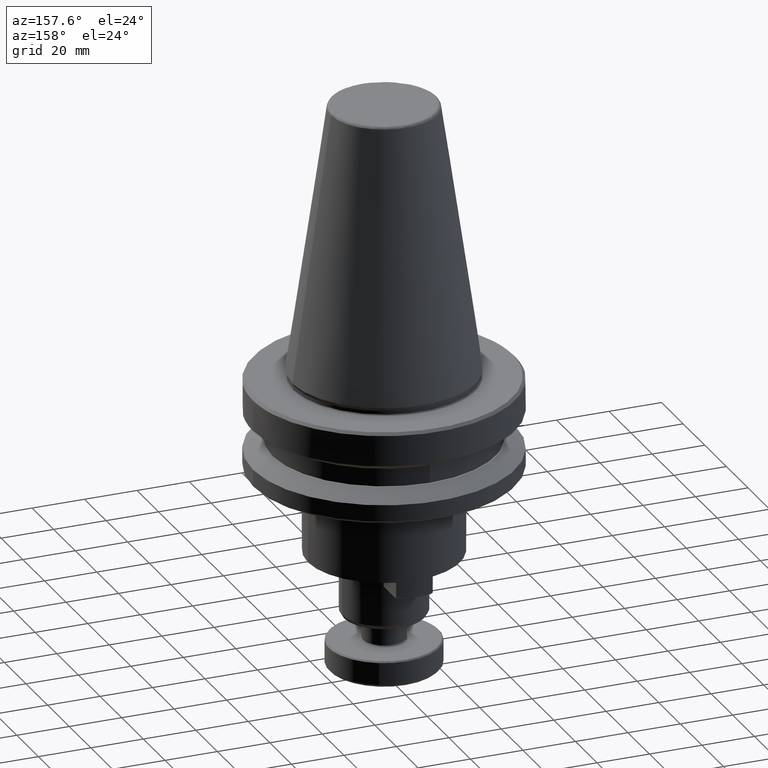
[diagram: clean part render]
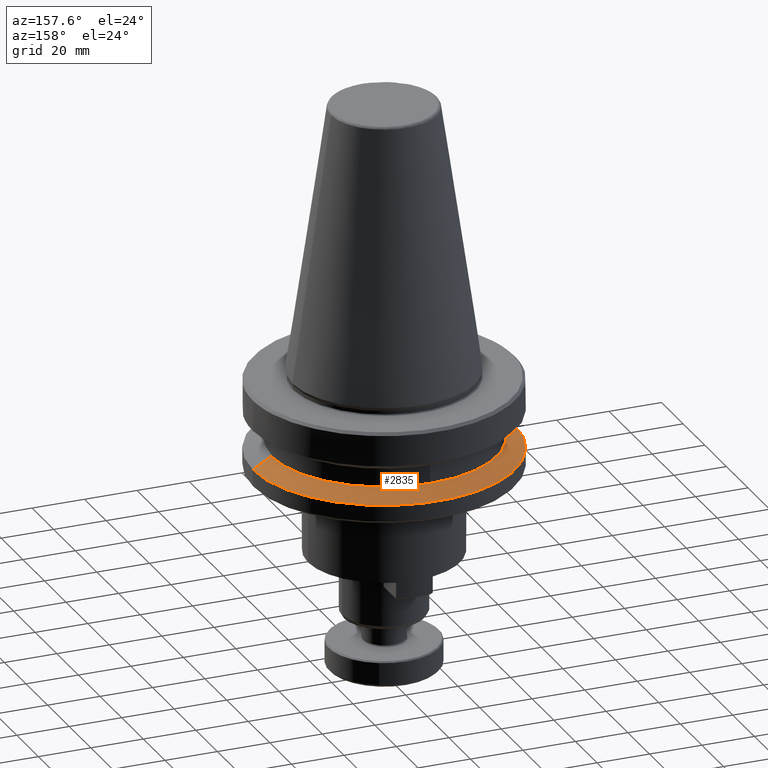
[diagram: same view with one face highlighted and labeled with its STEP entity id]
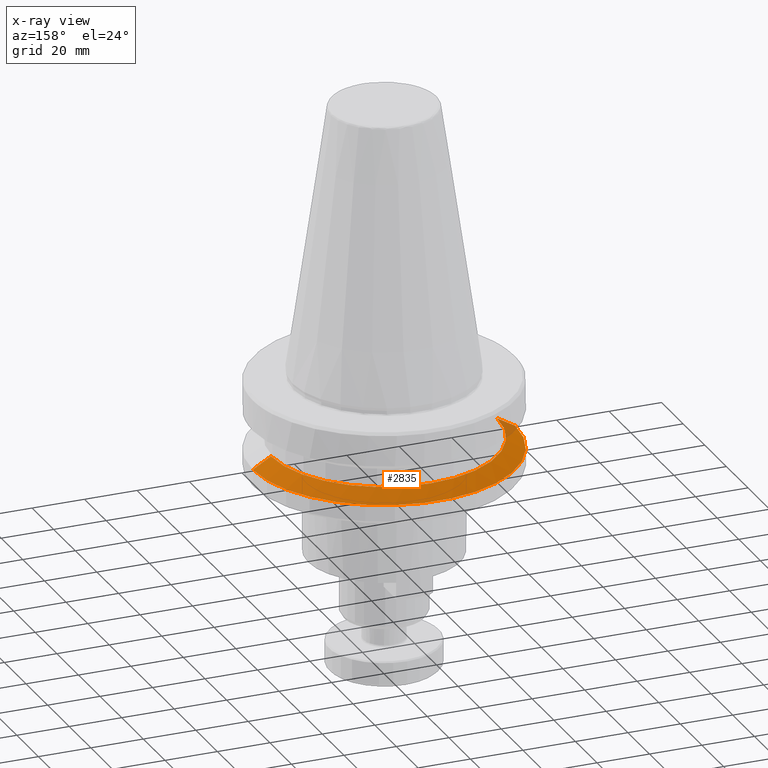
[diagram: x-ray of the same camera — body ghosted, the highlighted face saturated]
A machine part, auxiliary view. The second image highlights one B-rep face of the part: STEP entity #2835.
The next image is the same camera in x-ray: the body ghosted, the highlighted face saturated — about 3% of this face is hidden behind the body in this view.
In plain terms, the highlighted conical surface has half-angle 60 deg.
Its self-contained STEP definition (entity closure, byte-faithful):
#6 = CIRCLE ( 'NONE', #2283, 49.99999999999999300 ) ;
#27 = EDGE_CURVE ( 'NONE', #1665, #1702, #6, .T. ) ;
#118 = DIRECTION ( 'NONE',  ( 0.8660254284838163600, 1.060575268972920700E-016, -0.4999999572194205900 ) ) ;
#124 = CARTESIAN_POINT ( 'NONE',  ( 49.99999999999999300, 6.123233995736765300E-015, -30.69090246188667200 ) ) ;
#227 = VERTEX_POINT ( 'NONE', #1510 ) ;
#422 = DIRECTION ( 'NONE',  ( -0.8660254284838163600, 0.0000000000000000000, -0.4999999572194205900 ) ) ;
#558 = CARTESIAN_POINT ( 'NONE',  ( 0.0000000000000000000, 0.0000000000000000000, -26.69999999715254200 ) ) ;
#590 = LINE ( 'NONE', #124, #674 ) ;
#652 = CARTESIAN_POINT ( 'NONE',  ( 43.08755337444606700, 5.699968714023688800E-015, -26.69999999715254200 ) ) ;
#674 = VECTOR ( 'NONE', #118, 1000.000000000000100 ) ;
#783 = DIRECTION ( 'NONE',  ( 1.000000000000000000, 0.0000000000000000000, 0.0000000000000000000 ) ) ;
#962 = VERTEX_POINT ( 'NONE', #652 ) ;
#1147 = EDGE_CURVE ( 'NONE', #962, #1665, #590, .T. ) ;
#1150 = ORIENTED_EDGE ( 'NONE', *, *, #2772, .F. ) ;
#1235 = VECTOR ( 'NONE', #422, 1000.000000000000100 ) ;
#1259 = LINE ( 'NONE', #1726, #1235 ) ;
#1294 = EDGE_LOOP ( 'NONE', ( #1150, #2558, #1642, #1307 ) ) ;
#1307 = ORIENTED_EDGE ( 'NONE', *, *, #1773, .F. ) ;
#1308 = DIRECTION ( 'NONE',  ( 1.000000000000000000, 0.0000000000000000000, 0.0000000000000000000 ) ) ;
#1491 = AXIS2_PLACEMENT_3D ( 'NONE', #1746, #2075, #2282 ) ;
#1510 = CARTESIAN_POINT ( 'NONE',  ( -43.08755337444606700, 0.0000000000000000000, -26.69999999715254200 ) ) ;
#1567 = CARTESIAN_POINT ( 'NONE',  ( 49.99999999999999300, 6.123233995736765300E-015, -30.69090246188667200 ) ) ;
#1642 = ORIENTED_EDGE ( 'NONE', *, *, #27, .T. ) ;
#1665 = VERTEX_POINT ( 'NONE', #1567 ) ;
#1702 = VERTEX_POINT ( 'NONE', #1875 ) ;
#1726 = CARTESIAN_POINT ( 'NONE',  ( -49.99999999999999300, 0.0000000000000000000, -30.69090246188667200 ) ) ;
#1746 = CARTESIAN_POINT ( 'NONE',  ( 0.0000000000000000000, 0.0000000000000000000, -30.69090246188667200 ) ) ;
#1773 = EDGE_CURVE ( 'NONE', #227, #1702, #1259, .T. ) ;
#1875 = CARTESIAN_POINT ( 'NONE',  ( -49.99999999999999300, 0.0000000000000000000, -30.69090246188667200 ) ) ;
#1918 = CARTESIAN_POINT ( 'NONE',  ( 0.0000000000000000000, 0.0000000000000000000, -30.69090246188667200 ) ) ;
#1924 = DIRECTION ( 'NONE',  ( -0.0000000000000000000, -0.0000000000000000000, 1.000000000000000000 ) ) ;
#2051 = AXIS2_PLACEMENT_3D ( 'NONE', #558, #2155, #783 ) ;
#2075 = DIRECTION ( 'NONE',  ( 0.0000000000000000000, 0.0000000000000000000, -1.000000000000000000 ) ) ;
#2135 = CIRCLE ( 'NONE', #2051, 43.08755337444606700 ) ;
#2155 = DIRECTION ( 'NONE',  ( -0.0000000000000000000, -0.0000000000000000000, 1.000000000000000000 ) ) ;
#2264 = FACE_OUTER_BOUND ( 'NONE', #1294, .T. ) ;
#2282 = DIRECTION ( 'NONE',  ( -1.000000000000000000, 0.0000000000000000000, 0.0000000000000000000 ) ) ;
#2283 = AXIS2_PLACEMENT_3D ( 'NONE', #1918, #1924, #1308 ) ;
#2323 = CONICAL_SURFACE ( 'NONE', #1491, 49.99999999999999300, 1.047197600595355200 ) ;
#2558 = ORIENTED_EDGE ( 'NONE', *, *, #1147, .T. ) ;
#2772 = EDGE_CURVE ( 'NONE', #962, #227, #2135, .T. ) ;
#2835 = ADVANCED_FACE ( 'NONE', ( #2264 ), #2323, .T. ) ;